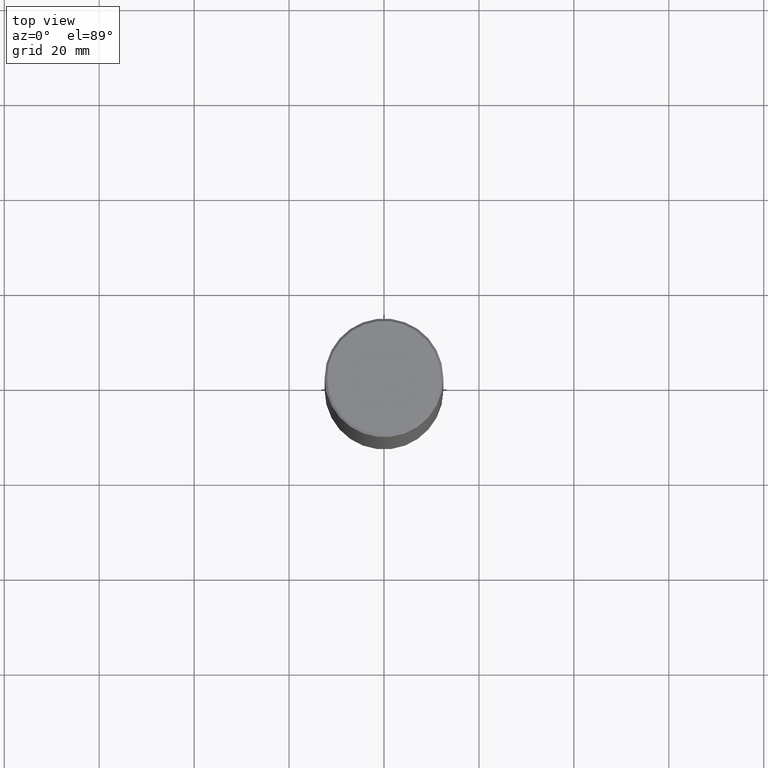
[diagram: clean part render]
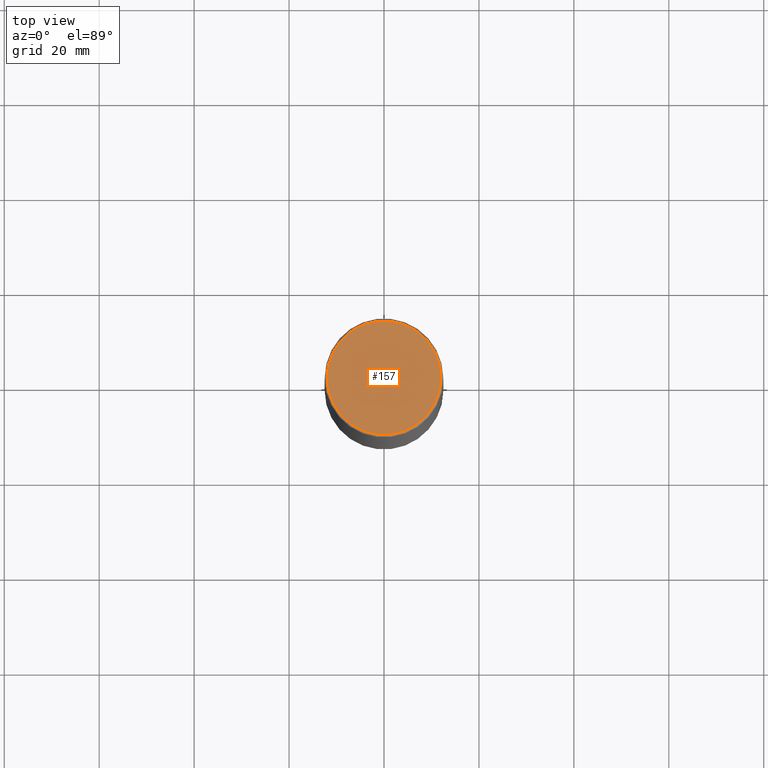
[diagram: same view with one face highlighted and labeled with its STEP entity id]
A machine part, top view. The second image highlights one B-rep face of the part: STEP entity #157.
In plain terms, the highlighted planar face has unit normal (0, -0, -1).
Its self-contained STEP definition (entity closure, byte-faithful):
#38 = CIRCLE ( 'NONE', #141, 0.4721500000000000696 ) ;
#44 = VERTEX_POINT ( 'NONE', #371 ) ;
#67 = DIRECTION ( 'NONE',  ( -2.445468806185136597E-29, 3.491481338843145583E-15, 1.000000000000000000 ) ) ;
#116 = CARTESIAN_POINT ( 'NONE',  ( 3.297005828269570364E-15, 0.4721500000000000696, -1.731738907691749419E-15 ) ) ;
#127 = DIRECTION ( 'NONE',  ( 1.000000000000000000, -6.982962677686266711E-15, 4.875605319575677862E-29 ) ) ;
#141 = AXIS2_PLACEMENT_3D ( 'NONE', #351, #67, #127 ) ;
#157 = ADVANCED_FACE ( 'NONE', ( #245 ), #379, .F. ) ;
#173 = CIRCLE ( 'NONE', #373, 0.4721500000000000696 ) ;
#211 = CARTESIAN_POINT ( 'NONE',  ( 4.071020515907357082E-45, -5.812338364483744108E-31, -1.664719871139160491E-16 ) ) ;
#218 = DIRECTION ( 'NONE',  ( -1.000000000000000000, 6.982962677686265922E-15, -4.876176775795935793E-29 ) ) ;
#243 = EDGE_CURVE ( 'NONE', #44, #335, #173, .T. ) ;
#245 = FACE_OUTER_BOUND ( 'NONE', #399, .T. ) ;
#266 = ORIENTED_EDGE ( 'NONE', *, *, #380, .T. ) ;
#309 = DIRECTION ( 'NONE',  ( 2.438088387897960049E-29, -3.491481338843145188E-15, -1.000000000000000000 ) ) ;
#335 = VERTEX_POINT ( 'NONE', #416 ) ;
#336 = DIRECTION ( 'NONE',  ( 1.000000000000000000, -6.982962677686266711E-15, 4.875605319575677862E-29 ) ) ;
#337 = DIRECTION ( 'NONE',  ( -2.445468806185136597E-29, 3.491481338843145583E-15, 1.000000000000000000 ) ) ;
#351 = CARTESIAN_POINT ( 'NONE',  ( 4.071020515907357082E-45, -5.812338364483744108E-31, -1.664719871139160491E-16 ) ) ;
#371 = CARTESIAN_POINT ( 'NONE',  ( -0.4721500000000000696, 3.331920641658001618E-15, -1.664719871139392219E-16 ) ) ;
#373 = AXIS2_PLACEMENT_3D ( 'NONE', #211, #337, #336 ) ;
#379 = PLANE ( 'NONE',  #407 ) ;
#380 = EDGE_CURVE ( 'NONE', #335, #44, #38, .T. ) ;
#395 = ORIENTED_EDGE ( 'NONE', *, *, #243, .T. ) ;
#399 = EDGE_LOOP ( 'NONE', ( #395, #266 ) ) ;
#407 = AXIS2_PLACEMENT_3D ( 'NONE', #116, #309, #218 ) ;
#416 = CARTESIAN_POINT ( 'NONE',  ( 0.4721500000000000696, -3.342703923013975763E-15, -1.664719871138928270E-16 ) ) ;